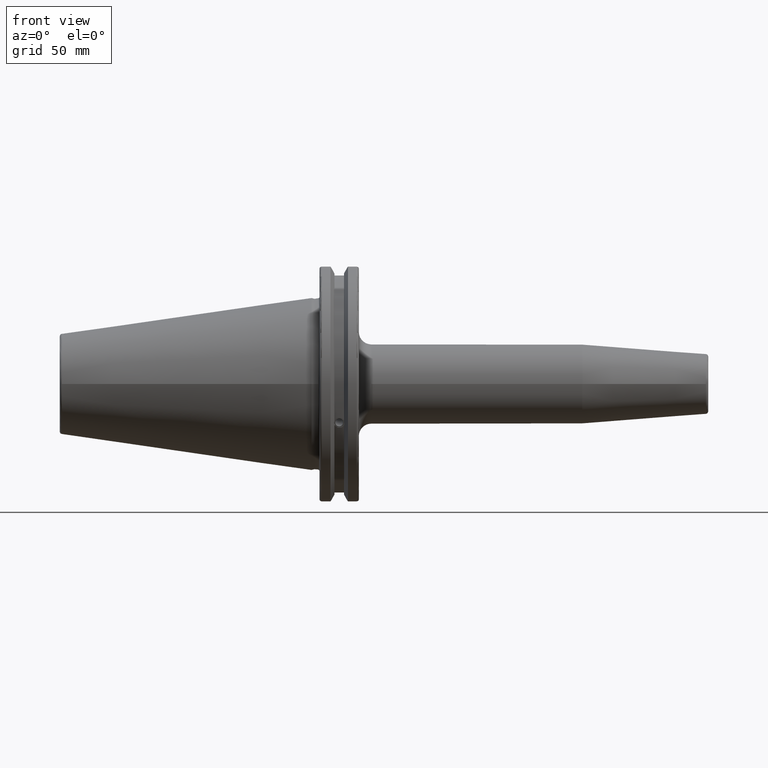
[diagram: clean part render]
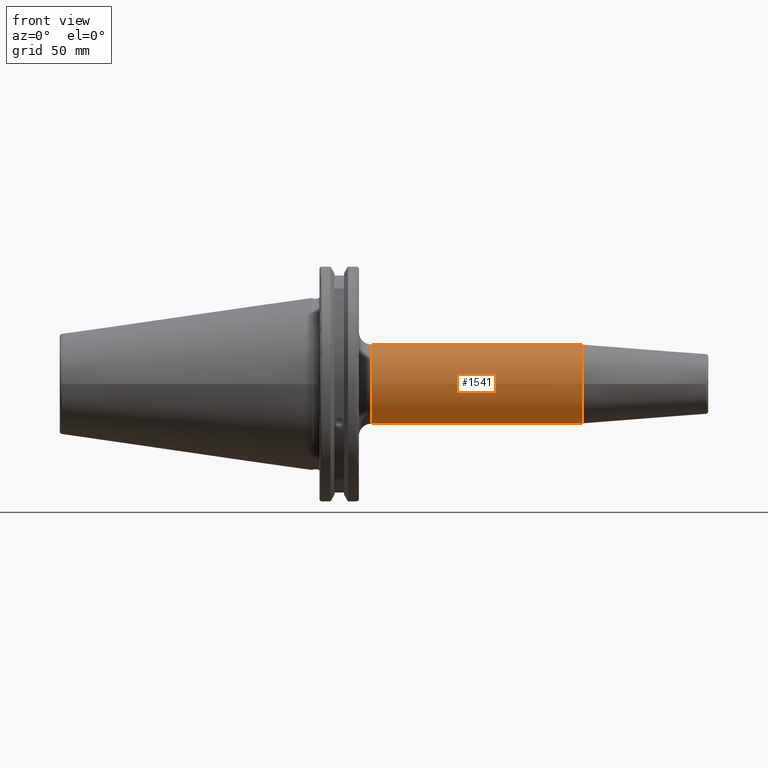
[diagram: same view with one face highlighted and labeled with its STEP entity id]
A machine part, front view. The second image highlights one B-rep face of the part: STEP entity #1541.
In plain terms, the highlighted cylindrical surface (bore or boss wall) has radius 16 mm, axis along (1, 0, 0).
Its self-contained STEP definition (entity closure, byte-faithful):
#87=LINE('',#2317,#185);
#185=VECTOR('',#1876,16.);
#282=CYLINDRICAL_SURFACE('',#1672,16.);
#380=FACE_OUTER_BOUND('',#475,.T.);
#475=EDGE_LOOP('',(#1083,#1084,#1085,#1086,#1087));
#589=CIRCLE('',#1666,16.);
#590=CIRCLE('',#1668,16.);
#593=CIRCLE('',#1671,16.);
#669=VERTEX_POINT('',#2305);
#670=VERTEX_POINT('',#2309);
#671=VERTEX_POINT('',#2310);
#831=EDGE_CURVE('',#669,#669,#589,.T.);
#832=EDGE_CURVE('',#670,#671,#590,.T.);
#835=EDGE_CURVE('',#671,#670,#593,.T.);
#836=EDGE_CURVE('',#669,#670,#87,.T.);
#1083=ORIENTED_EDGE('',*,*,#831,.F.);
#1084=ORIENTED_EDGE('',*,*,#836,.T.);
#1085=ORIENTED_EDGE('',*,*,#835,.F.);
#1086=ORIENTED_EDGE('',*,*,#832,.F.);
#1087=ORIENTED_EDGE('',*,*,#836,.F.);
#1541=ADVANCED_FACE('',(#380),#282,.T.);
#1666=AXIS2_PLACEMENT_3D('',#2307,#1862,#1863);
#1668=AXIS2_PLACEMENT_3D('',#2311,#1866,#1867);
#1671=AXIS2_PLACEMENT_3D('',#2315,#1872,#1873);
#1672=AXIS2_PLACEMENT_3D('',#2316,#1874,#1875);
#1862=DIRECTION('center_axis',(1.,0.,0.));
#1863=DIRECTION('ref_axis',(0.,0.,-1.));
#1866=DIRECTION('center_axis',(-1.,0.,0.));
#1867=DIRECTION('ref_axis',(0.,-1.,-1.22464679914735E-16));
#1872=DIRECTION('center_axis',(-1.,0.,0.));
#1873=DIRECTION('ref_axis',(0.,-1.,-1.22464679914735E-16));
#1874=DIRECTION('center_axis',(1.,0.,0.));
#1875=DIRECTION('ref_axis',(0.,1.,0.));
#1876=DIRECTION('',(-1.,0.,0.));
#2305=CARTESIAN_POINT('',(109.175181055301,-16.,-1.95943487863577E-15));
#2307=CARTESIAN_POINT('Origin',(109.175181055301,0.,0.));
#2309=CARTESIAN_POINT('',(24.05,-16.,-1.95943487863577E-15));
#2310=CARTESIAN_POINT('',(24.05,-1.95943487863577E-15,-16.));
#2311=CARTESIAN_POINT('Origin',(24.05,0.,0.));
#2315=CARTESIAN_POINT('Origin',(24.05,0.,0.));
#2316=CARTESIAN_POINT('Origin',(64.1125905276506,0.,0.));
#2317=CARTESIAN_POINT('',(64.1125905276506,-16.,-1.95943487863577E-15));